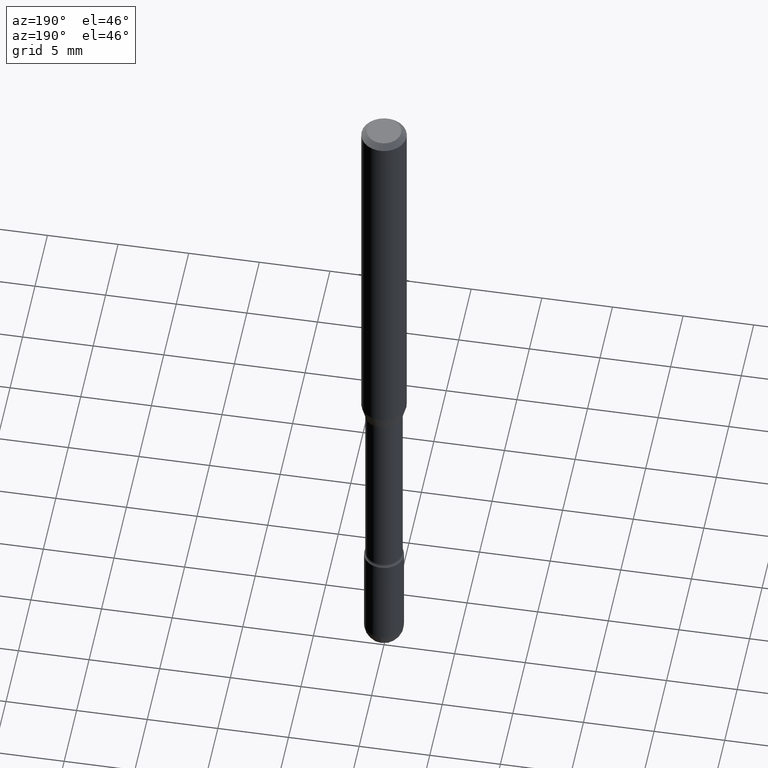
[diagram: clean part render]
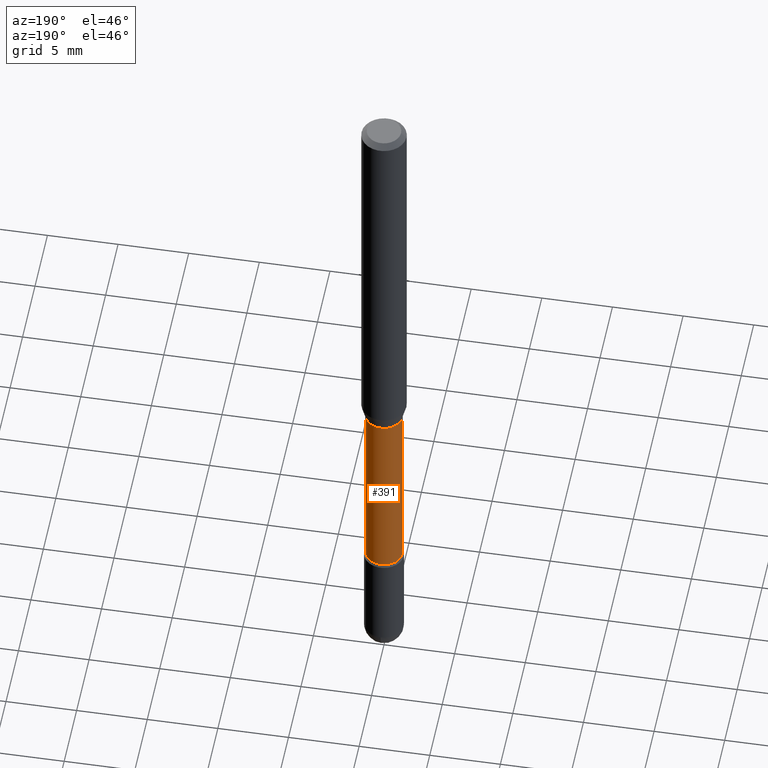
[diagram: same view with one face highlighted and labeled with its STEP entity id]
A machine part, auxiliary view. The second image highlights one B-rep face of the part: STEP entity #391.
In plain terms, the highlighted cylindrical surface (edge-blend (fillet) strip) has radius 1.3132 mm, axis along (-0, 0, 1).
Its self-contained STEP definition (entity closure, byte-faithful):
#3 = CIRCLE ( 'NONE', #270, 0.05169999999999999596 ) ;
#60 = EDGE_CURVE ( 'NONE', #423, #94, #475, .T. ) ;
#75 = VECTOR ( 'NONE', #124, 39.37007874015748143 ) ;
#82 = CARTESIAN_POINT ( 'NONE',  ( -1.169113584055446105E-44, 1.669184350826100908E-30, 4.780733988912460139E-16 ) ) ;
#94 = VERTEX_POINT ( 'NONE', #533 ) ;
#101 = DIRECTION ( 'NONE',  ( -2.445468806185136877E-29, 3.491481338843145188E-15, 1.000000000000000000 ) ) ;
#103 = ORIENTED_EDGE ( 'NONE', *, *, #60, .T. ) ;
#115 = DIRECTION ( 'NONE',  ( 1.000000000000000000, -6.982962677686275388E-15, 0.000000000000000000 ) ) ;
#117 = CARTESIAN_POINT ( 'NONE',  ( 0.05169999999999999596, -6.159019543879958449E-15, -1.660613307291702645 ) ) ;
#124 = DIRECTION ( 'NONE',  ( -2.445468806185136877E-29, 3.491481338843145188E-15, 1.000000000000000000 ) ) ;
#133 = CYLINDRICAL_SURFACE ( 'NONE', #553, 0.05169999999999999596 ) ;
#155 = EDGE_CURVE ( 'NONE', #240, #423, #562, .T. ) ;
#157 = CARTESIAN_POINT ( 'NONE',  ( 4.060978042117791300E-29, -5.798000373443578100E-15, -1.660613307291702645 ) ) ;
#159 = AXIS2_PLACEMENT_3D ( 'NONE', #157, #297, #115 ) ;
#212 = FACE_OUTER_BOUND ( 'NONE', #535, .T. ) ;
#214 = EDGE_CURVE ( 'NONE', #244, #94, #3, .T. ) ;
#222 = CARTESIAN_POINT ( 'NONE',  ( -0.05169999999999999596, 3.673505943879734930E-16, 4.780733988912435487E-16 ) ) ;
#227 = CARTESIAN_POINT ( 'NONE',  ( 0.05169999999999999596, -3.610191704363782779E-16, 4.780733988912485777E-16 ) ) ;
#230 = ORIENTED_EDGE ( 'NONE', *, *, #214, .F. ) ;
#240 = VERTEX_POINT ( 'NONE', #117 ) ;
#244 = VERTEX_POINT ( 'NONE', #454 ) ;
#270 = AXIS2_PLACEMENT_3D ( 'NONE', #503, #498, #541 ) ;
#297 = DIRECTION ( 'NONE',  ( -2.445468806185136597E-29, 3.491481338843145583E-15, 1.000000000000000000 ) ) ;
#310 = DIRECTION ( 'NONE',  ( -2.445468806185136597E-29, 3.491481338843145583E-15, 1.000000000000000000 ) ) ;
#312 = LINE ( 'NONE', #227, #538 ) ;
#346 = CARTESIAN_POINT ( 'NONE',  ( -0.05169999999999999596, -5.435312555127801674E-15, -1.660613307291702645 ) ) ;
#364 = ORIENTED_EDGE ( 'NONE', *, *, #523, .F. ) ;
#391 = ADVANCED_FACE ( 'NONE', ( #212 ), #133, .T. ) ;
#423 = VERTEX_POINT ( 'NONE', #346 ) ;
#454 = CARTESIAN_POINT ( 'NONE',  ( 0.05169999999999999596, -4.278373203518779106E-15, -1.121974787463810630 ) ) ;
#475 = LINE ( 'NONE', #222, #75 ) ;
#498 = DIRECTION ( 'NONE',  ( -2.445468806185136597E-29, 3.491481338843145583E-15, 1.000000000000000000 ) ) ;
#503 = CARTESIAN_POINT ( 'NONE',  ( 2.743754344068947151E-29, -3.917354033082399546E-15, -1.121974787463810630 ) ) ;
#523 = EDGE_CURVE ( 'NONE', #240, #244, #312, .T. ) ;
#533 = CARTESIAN_POINT ( 'NONE',  ( -0.05169999999999999596, -4.490326608875016858E-15, -1.121974787463810630 ) ) ;
#535 = EDGE_LOOP ( 'NONE', ( #550, #103, #230, #364 ) ) ;
#538 = VECTOR ( 'NONE', #101, 39.37007874015748143 ) ;
#541 = DIRECTION ( 'NONE',  ( 1.000000000000000000, -6.982962677686265922E-15, 0.000000000000000000 ) ) ;
#550 = ORIENTED_EDGE ( 'NONE', *, *, #155, .T. ) ;
#553 = AXIS2_PLACEMENT_3D ( 'NONE', #82, #310, #559 ) ;
#559 = DIRECTION ( 'NONE',  ( 1.000000000000000000, -6.982962677686266711E-15, 4.927827573631271447E-29 ) ) ;
#562 = CIRCLE ( 'NONE', #159, 0.05169999999999999596 ) ;